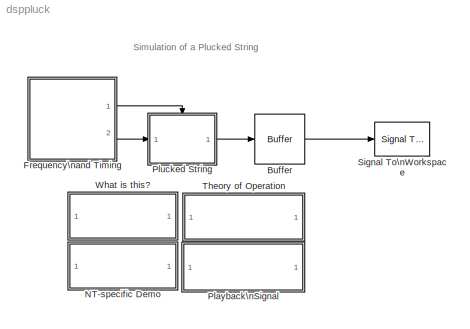
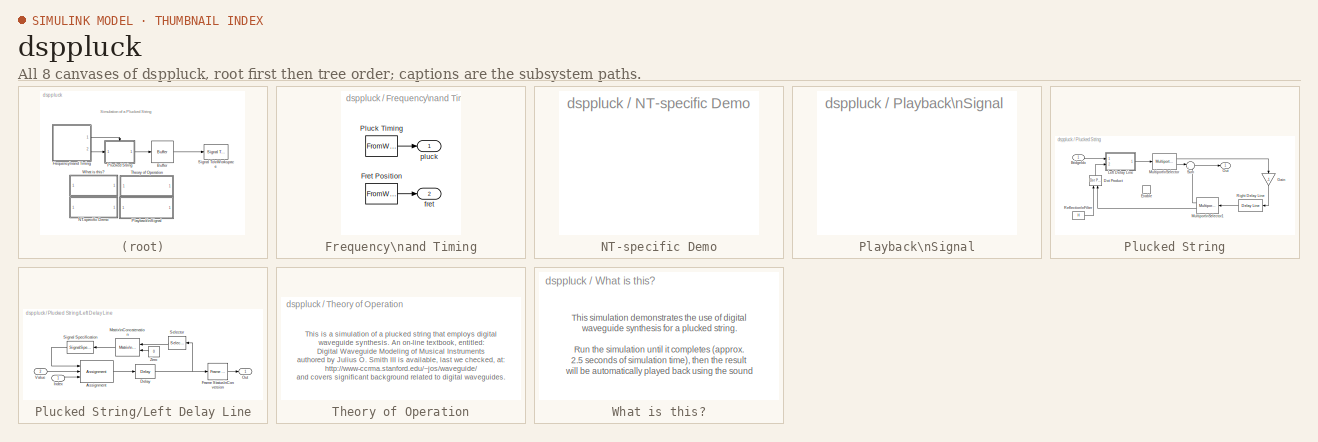
[diagram: thumbnail index - all 8 canvases of the model, root first then tree order]
MODEL dsppluck
KIND model
BLOCK [Reference] Buffer  REF=dspbuff3/Buffer
  N = 128
  Ports = [1, 1]
  SourceBlock = dspbuff3/Buffer
  SourceType = Buffer
  V = 0
  ic = 0
BLOCK [SubSystem] Frequency\nand Timing
  MaskCallbackString = ||
  MaskDisplay = disp('Instrument');\n
  MaskEnableString = on,on,on
  MaskIconFrame = on
  MaskIconOpaque = on
  MaskIconRotate = none
  MaskIconUnits = autoscale
  MaskInitialization = % Fret position (frequency) signal\np=ptime(:); q=ones(size(p)).*fret(:);\np=p(:); q=q(:);\nfreq.time=p*Ts;\nfreq.signals.values=uint16(q);\nfreq.signals.dimensions=1;\n\n% Pluck timing (enable) signal\np=ptime(:); p=p(2:end); q=ones(size(p));\np=[p p+1]'; p=[1;p(:)];\nq=[zeros(size(q)) q]'; q=[1;q(:)];\nena.time=p*Ts;\nena.signals.values=boolean(q);\nena.signals.dimensions=1;\n
  MaskPromptString = Pluck time indices:|Fret position:|Sample time:
  MaskStyleString = edit,edit,edit
  MaskTabNameString = ,,
  MaskToolTipString = on,on,on
  MaskTunableValueString = on,on,on
  MaskValueString = [0 5000 7500 10000 15000]|[30 14 14 23 8]|1/16000
  MaskVarAliasString = ,,
  MaskVariables = ptime=@1;fret=@2;Ts=@3;
  MaskVisibilityString = on,on,on
  MinAlgLoopOccurrences = off
  Ports = [0, 2]
  PropExecContextAcrossSSBoundary = on
  RTWSystemCode = Auto
  TreatAsAtomicUnit = off
BLOCK [FromWorkspace] Frequency\nand Timing/Fret Position
  Interpolate = off
  OutputAfterFinalValue = Holding final value
  SampleTime = Ts
  VariableName = freq
BLOCK [FromWorkspace] Frequency\nand Timing/Pluck Timing
  Interpolate = off
  OutputAfterFinalValue = Holding final value
  SampleTime = Ts
  VariableName = ena
BLOCK [Outport] Frequency\nand Timing/fret
  BusOutputAsStruct = off
  IconDisplay = Port number
  Port = 2
BLOCK [Outport] Frequency\nand Timing/pluck
  BusOutputAsStruct = off
  IconDisplay = Port number
BLOCK [SubSystem] NT-specific Demo
  MaskDisplay = disp('PC/Windows\\nDemo')
  MaskIconFrame = on
  MaskIconOpaque = on
  MaskIconRotate = none
  MaskIconUnits = autoscale
  MaskType = NT-only Demo
  MinAlgLoopOccurrences = off
  OpenFcn = dsppluck_win32
  Ports = []
  PropExecContextAcrossSSBoundary = on
  RTWSystemCode = Auto
  TreatAsAtomicUnit = off
BLOCK [SubSystem] Playback\nSignal
  MaskDisplay = disp('Playback\\nSignal')
  MaskIconFrame = on
  MaskIconOpaque = on
  MaskIconRotate = none
  MaskIconUnits = autoscale
  MaskType = Original Signal
  MinAlgLoopOccurrences = off
  OpenFcn = if exist('y_pluck','var'),                              \n   sound(double(y_pluck),16000);                        \nelse                                                    \n   errordlg('Run model before playing.', ...            \n               'Signal Processing Blockset Demo Error');\nend                                                     \n
  Ports = []
  PropExecContextAcrossSSBoundary = on
  RTWSystemCode = Auto
  StopFcn = sound(double(y_pluck),16000);
  TreatAsAtomicUnit = off
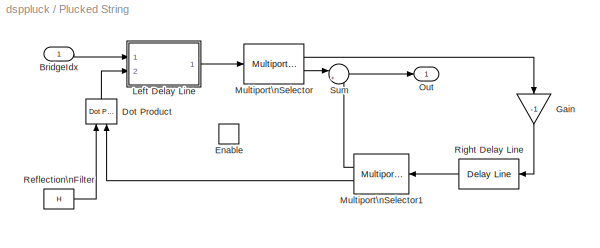
BLOCK [SubSystem] Plucked String
  MaskCallbackString = |||
  MaskDescription = Simulates a plucked string.  Input signal is a scalar integer value indicating the placement of the \"bridge\", e.g., it sets the frequency of the output.  Lower numbers lead to higher frequencies, and this must be <= L, the length of the delay line.\n\nString Length is a relative measure, specified in number of discrete samples, which is related to the length of the digital delay line.  It must b...<+325ch>
  MaskDisplay = disp('Digital\\nWaveguide\\nSynthesis')
  MaskEnableString = on,on,on,on
  MaskHelp = web(dspbhelp);\n\n
  MaskIconFrame = on
  MaskIconOpaque = on
  MaskIconRotate = none
  MaskIconUnits = autoscale
  MaskInitialization = % [LtInit,RtInit] = dspblkpluck(SLen,PPt,H);\n%\n% pluck position is given as a sample count\n% create triangular waveform for initialization\nx = [ (0:floor(PPt))./PPt, ...\n      (SLen-1-((floor(PPt)+1):(SLen-1)))./(SLen-1-PPt) ];\n\n% Because initial velocity profile is flat,\n% initial displacement profile is equal in\n% leftgoing and rightgoing waves.\n%\n% Make right-going delay-line long en...<+180ch>
  MaskPromptString = String length, L (number of samples):|Reflection filter (FIR):|Pluck point, P (0 < P <= L):|Pickup index, i (0 < i <= L):
  MaskStyleString = edit,edit,edit,edit
  MaskTabNameString = ,,,
  MaskToolTipString = on,on,on,on
  MaskTunableValueString = off,off,off,on
  MaskType = Plucked String Simulator
  MaskValueString = 35|single(-[.25 .5 .25])|30|30
  MaskVarAliasString = ,,,
  MaskVariables = SLen=@1;H=@2;PPt=@3;PickupIdx=@4;
  MaskVisibilityString = on,on,on,on
  MinAlgLoopOccurrences = off
  Ports = [1, 1, 1]
  PropExecContextAcrossSSBoundary = on
  RTWSystemCode = Auto
  TreatAsAtomicUnit = on
BLOCK [Inport] Plucked String/BridgeIdx
  IconDisplay = Port number
  LatchInput = off
BLOCK [Reference] Plucked String/Dot Product  REF=simulink/Math\nOperations/Dot Product
  DoSatur = off
  InputSameDT = off
  LockScale = off
  OutDataType = sfix(16)
  OutScaling = 2^-10
  OutputDataTypeScalingMode = Inherit via internal rule
  Ports = [2, 1]
  RndMeth = Floor
  SourceBlock = simulink/Math\nOperations/Dot Product
  SourceType = Dot Product
BLOCK [EnablePort] Plucked String/Enable
  Ports = []
  StatesWhenEnabling = reset
  ZeroCross = off
BLOCK [Gain] Plucked String/Gain
  Gain = -1
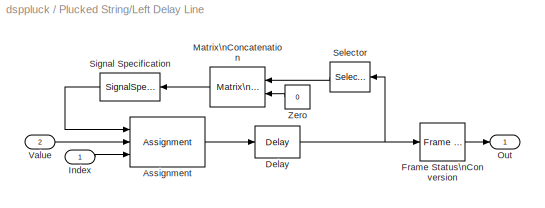
BLOCK [SubSystem] Plucked String/Left Delay Line
  MaskCallbackString = |
  MaskDescription = Shift out delay line contents and store input data into delay line at point specified by the Index port.\n\nIndex port expects a 1-based index.
  MaskDisplay = disp('Variable\\nDelay\\nLine');
  MaskEnableString = on,on
  MaskHelp = web(dspbhelp);\n
  MaskIconFrame = on
  MaskIconOpaque = on
  MaskIconRotate = none
  MaskIconUnits = autoscale
  MaskPromptString = Delay line size:|Initial conditions:
  MaskStyleString = edit,edit
  MaskTabNameString = ,
  MaskToolTipString = on,on
  MaskTunableValueString = off,off
  MaskType = Variable Delay Line
  MaskValueString = length(LtInit)|LtInit
  MaskVarAliasString = ,
  MaskVariables = siz=@1;ic=@2;
  MaskVisibilityString = on,on
  MinAlgLoopOccurrences = off
  Ports = [2, 1]
  PropExecContextAcrossSSBoundary = on
  RTWSystemCode = Auto
  TreatAsAtomicUnit = off
BLOCK [Assignment] Plucked String/Left Delay Line/Assignment
  Columns = -1
  ElementSrc = External
  Ports = [3, 1]
BLOCK [Reference] Plucked String/Left Delay Line/Delay  REF=dspsigops/Delay
  Ports = [1, 1]
  SourceBlock = dspsigops/Delay
  SourceType = Delay
  delay = 1
  dif_ic_for_ch = on
  dif_ic_for_dly = off
  dly_unit = Samples
  ic = ic
  ic_detail = on
  reset_popup = None
BLOCK [Reference] Plucked String/Left Delay Line/Frame Status\nConversion  REF=dspsigattribs/Frame Status\nConversion
  Ports = [1, 1]
  ShowPortLabels = off
  SourceBlock = dspsigattribs/Frame Status\nConversion
  SourceType = Frame Status Conversion
  growRefPort = off
  outframe = Frame-based
BLOCK [Inport] Plucked String/Left Delay Line/Index
  IconDisplay = Port number
  LatchInput = off
BLOCK [Reference] Plucked String/Left Delay Line/Matrix\nConcatenation  REF=simulink/Math\nOperations/Matrix\nConcatenation
  Ports = [2, 1]
  SourceBlock = simulink/Math\nOperations/Matrix\nConcatenation
  SourceType = Matrix Concatenation
  catMethod = Vertical
  numInports = 2
BLOCK [Outport] Plucked String/Left Delay Line/Out
  BusOutputAsStruct = off
  IconDisplay = Port number
BLOCK [Selector] Plucked String/Left Delay Line/Selector
  Elements = 2:siz
  InputPortWidth = siz
  Ports = [1, 1]
BLOCK [SignalSpecification] Plucked String/Left Delay Line/Signal Specification
  Dimensions = siz
BLOCK [Inport] Plucked String/Left Delay Line/Value
  IconDisplay = Port number
  LatchInput = off
  Port = 2
BLOCK [Constant] Plucked String/Left Delay Line/Zero
  OutDataTypeMode = Inherit via back propagation
  Value = 0
  VectorParams1D = off
BLOCK [Reference] Plucked String/Multiport\nSelector  REF=dspindex/Multiport\nSelector
  Ports = [1, 2]
  SourceBlock = dspindex/Multiport\nSelector
  SourceType = Multiport Selector
  idxCellArray = {1, PickupIdx}
  idxErrMode = Clip Index
  rowsOrCols = Rows
BLOCK [Reference] Plucked String/Multiport\nSelector1  REF=dspindex/Multiport\nSelector
  Ports = [1, 2]
  SourceBlock = dspindex/Multiport\nSelector
  SourceType = Multiport Selector
  idxCellArray = {PickupIdx, 1:length(H)}
  idxErrMode = Clip Index
  rowsOrCols = Rows
BLOCK [Outport] Plucked String/Out
  BusOutputAsStruct = off
  IconDisplay = Port number
BLOCK [Constant] Plucked String/Reflection\nFilter
  Value = H
  VectorParams1D = off
BLOCK [Reference] Plucked String/Right Delay Line  REF=dspbuff3/Delay Line
  Ports = [1, 1]
  SourceBlock = dspbuff3/Delay Line
  SourceType = Delay Line
  directfeed = off
  ic = RtInit
  siz = length(RtInit)
BLOCK [Sum] Plucked String/Sum
  IconShape = round
  Inputs = |++
  Ports = [2, 1]
BLOCK [Reference] Signal To\nWorkspace  REF=dspsnks4/Signal To\nWorkspace
  Decimation = 1
  FixptAsFi = off
  FrameMode = Concatenate frames (2-D array)
  MaxDataPoints = inf
  Ports = [1]
  ShowPortLabels = on
  SourceBlock = dspsnks4/Signal To\nWorkspace
  SourceType = Signal To Workspace
  VariableName = y_pluck
BLOCK [SubSystem] Theory of Operation
  MaskDisplay = disp('Theory of\\nOperation')
  MaskIconFrame = on
  MaskIconOpaque = on
  MaskIconRotate = none
  MaskIconUnits = autoscale
  MaskType = Theory of Operation
  MinAlgLoopOccurrences = off
  OpenFcn = helpview(fullfile(matlabroot,'toolbox','dspblks','dspdemos','dsppluck.html'))
  Ports = []
  PropExecContextAcrossSSBoundary = on
  RTWSystemCode = Auto
  TreatAsAtomicUnit = off
BLOCK [SubSystem] What is this?
  MaskDisplay = disp('What is this?')
  MaskIconFrame = on
  MaskIconOpaque = on
  MaskIconRotate = none
  MaskIconUnits = autoscale
  MaskType = Frame-Based Simulation Info
  MinAlgLoopOccurrences = off
  Ports = []
  PropExecContextAcrossSSBoundary = on
  RTWSystemCode = Auto
  TreatAsAtomicUnit = off
ANNOTATION (root): Simulation of a Plucked String
ANNOTATION Theory of Operation: This is a simulation of a plucked string that employs digital\nwaveguide synthesis. An on-line textbook, entitled:\n Digital Waveguide Modeling of Musical Instruments\nauthored by Julius O. Smith III is available, last we checked, at:\n http://www-ccrma.stanford.edu/~jos/waveguide/\nand covers significant background related to digital waveguides.\n\nThe Harmony Central website also provides very u...<+302ch>
ANNOTATION What is this?: This simulation demonstrates the use of digital\nwaveguide synthesis for a plucked string.\n\nRun the simulation until it completes (approx.\n2.5 seconds of simulation time), then the result\nwill be automatically played back using the sound\ncommand. If you wish to replay the output, just\ndouble-click the \"Playback Signal\" block.\n\nTo see the implementation, be sure to \"Look Under\"\nthe \"D...<+156ch>
LINE Buffer:1 -> Signal To\nWorkspace:1
LINE Frequency\nand Timing/Fret Position:1 -> Frequency\nand Timing/fret:1
LINE Frequency\nand Timing/Pluck Timing:1 -> Frequency\nand Timing/pluck:1
LINE Frequency\nand Timing:1 -> Plucked String:enable
LINE Frequency\nand Timing:2 -> Plucked String:1
LINE Plucked String/BridgeIdx:1 -> Plucked String/Left Delay Line:1
LINE Plucked String/Dot Product:1 -> Plucked String/Left Delay Line:2
LINE Plucked String/Gain:1 -> Plucked String/Right Delay Line:1
LINE Plucked String/Left Delay Line/Assignment:1 -> Plucked String/Left Delay Line/Delay:1
NET Plucked String/Left Delay Line/Delay:1 -> Plucked String/Left Delay Line/Frame Status\nConversion:1, Plucked String/Left Delay Line/Selector:1
LINE Plucked String/Left Delay Line/Frame Status\nConversion:1 -> Plucked String/Left Delay Line/Out:1
LINE Plucked String/Left Delay Line/Index:1 -> Plucked String/Left Delay Line/Assignment:3
LINE Plucked String/Left Delay Line/Matrix\nConcatenation:1 -> Plucked String/Left Delay Line/Signal Specification:1
LINE Plucked String/Left Delay Line/Selector:1 -> Plucked String/Left Delay Line/Matrix\nConcatenation:1
LINE Plucked String/Left Delay Line/Signal Specification:1 -> Plucked String/Left Delay Line/Assignment:1
LINE Plucked String/Left Delay Line/Value:1 -> Plucked String/Left Delay Line/Assignment:2
LINE Plucked String/Left Delay Line/Zero:1 -> Plucked String/Left Delay Line/Matrix\nConcatenation:2
LINE Plucked String/Left Delay Line:1 -> Plucked String/Multiport\nSelector:1
LINE Plucked String/Multiport\nSelector1:1 -> Plucked String/Sum:2
LINE Plucked String/Multiport\nSelector1:2 -> Plucked String/Dot Product:2
LINE Plucked String/Multiport\nSelector:1 -> Plucked String/Gain:1
LINE Plucked String/Multiport\nSelector:2 -> Plucked String/Sum:1
LINE Plucked String/Reflection\nFilter:1 -> Plucked String/Dot Product:1
LINE Plucked String/Right Delay Line:1 -> Plucked String/Multiport\nSelector1:1
LINE Plucked String/Sum:1 -> Plucked String/Out:1
LINE Plucked String:1 -> Buffer:1
note: NET lines group one-source signal fan-out (src -> all destinations, sorted); 1:1 wires keep LINE
